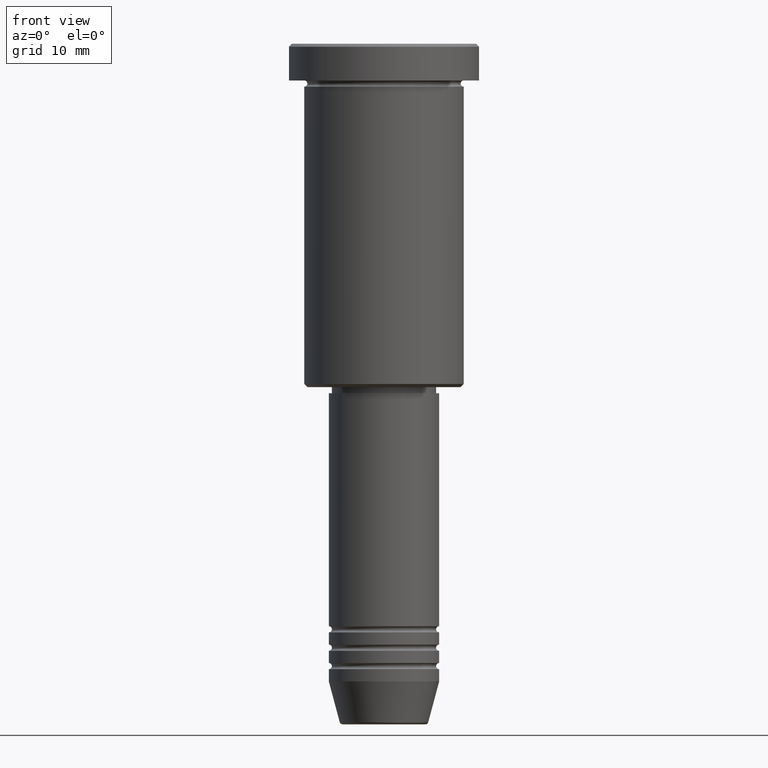
[diagram: clean part render]
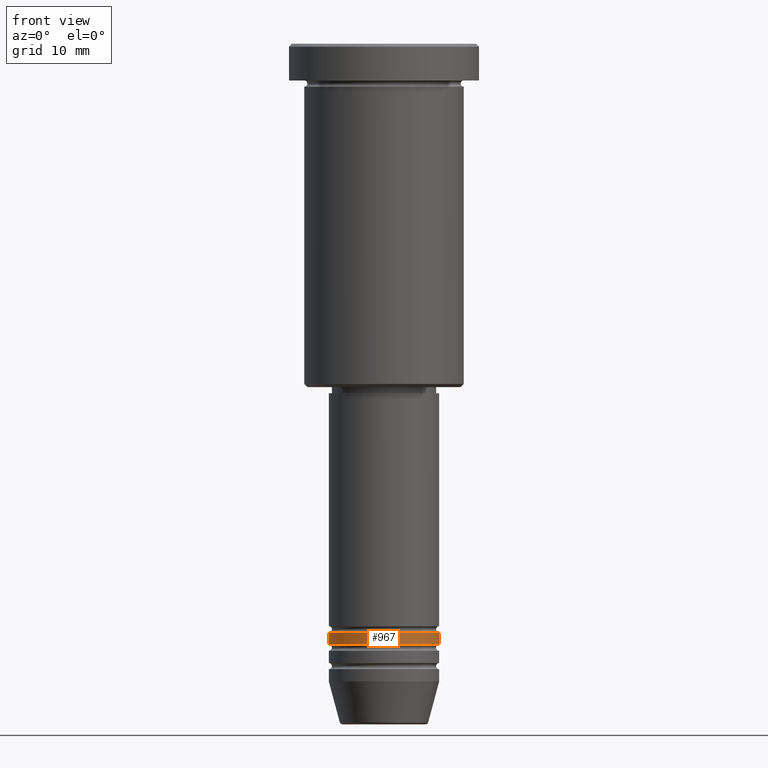
[diagram: same view with one face highlighted and labeled with its STEP entity id]
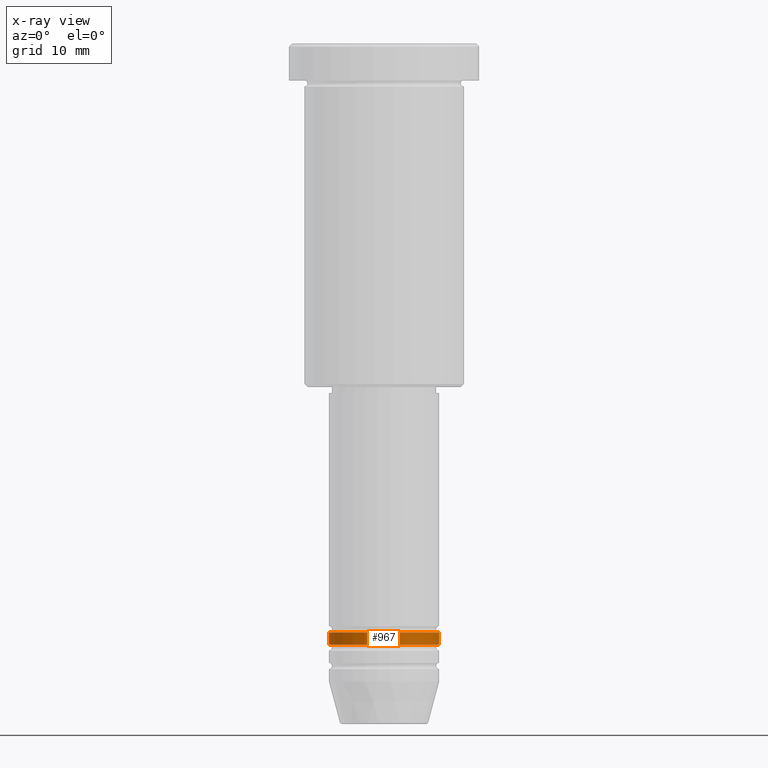
[diagram: x-ray of the same camera — body ghosted, the highlighted face saturated]
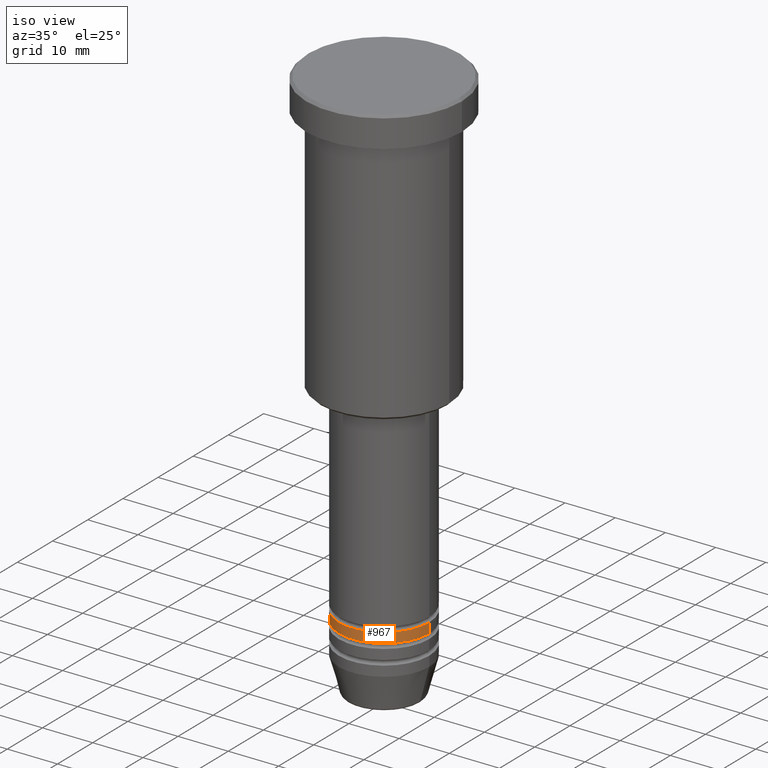
[diagram: same view with one face highlighted and labeled with its STEP entity id]
A machine part, front view. The second image highlights one B-rep face of the part: STEP entity #967.
The next image is the same camera in x-ray: the body ghosted, the highlighted face saturated — about 0% of this face is hidden behind the body in this view.
A second angle (iso view) of the same face is appended — the face is thin or edge-on in the first view.
In plain terms, the highlighted cylindrical surface (partial cylindrical patch) has radius 9 mm, axis along (-0, -0, 1).
Its self-contained STEP definition (entity closure, byte-faithful):
#16 = EDGE_LOOP ( 'NONE', ( #327, #965, #632, #74 ) ) ;
#62 = CARTESIAN_POINT ( 'NONE',  ( 9.000000000000000000, 0.000000000000000000, 0.000000000000000000 ) ) ;
#63 = VECTOR ( 'NONE', #236, 1000.000000000000000 ) ;
#69 = LINE ( 'NONE', #62, #63 ) ;
#74 = ORIENTED_EDGE ( 'NONE', *, *, #878, .F. ) ;
#82 = CIRCLE ( 'NONE', #942, 9.000000000000000000 ) ;
#119 = DIRECTION ( 'NONE',  ( 1.000000000000000000, 0.000000000000000000, 0.000000000000000000 ) ) ;
#134 = CARTESIAN_POINT ( 'NONE',  ( 0.000000000000000000, 0.000000000000000000, -95.99999999999998579 ) ) ;
#143 = AXIS2_PLACEMENT_3D ( 'NONE', #492, #345, #886 ) ;
#218 = DIRECTION ( 'NONE',  ( -0.000000000000000000, -0.000000000000000000, 1.000000000000000000 ) ) ;
#236 = DIRECTION ( 'NONE',  ( -0.000000000000000000, -0.000000000000000000, 1.000000000000000000 ) ) ;
#275 = VERTEX_POINT ( 'NONE', #294 ) ;
#294 = CARTESIAN_POINT ( 'NONE',  ( -9.000000000000000000, 1.102182119232617714E-15, -97.99999999999997158 ) ) ;
#327 = ORIENTED_EDGE ( 'NONE', *, *, #934, .F. ) ;
#345 = DIRECTION ( 'NONE',  ( -0.000000000000000000, -0.000000000000000000, 1.000000000000000000 ) ) ;
#451 = CARTESIAN_POINT ( 'NONE',  ( -9.000000000000000000, 1.102182119232617714E-15, -95.99999999999998579 ) ) ;
#470 = CARTESIAN_POINT ( 'NONE',  ( 0.000000000000000000, 0.000000000000000000, -97.99999999999997158 ) ) ;
#478 = DIRECTION ( 'NONE',  ( 1.000000000000000000, 0.000000000000000000, 0.000000000000000000 ) ) ;
#492 = CARTESIAN_POINT ( 'NONE',  ( 0.000000000000000000, 0.000000000000000000, 0.000000000000000000 ) ) ;
#580 = LINE ( 'NONE', #667, #999 ) ;
#627 = EDGE_CURVE ( 'NONE', #669, #698, #69, .T. ) ;
#631 = CARTESIAN_POINT ( 'NONE',  ( 9.000000000000000000, 0.000000000000000000, -95.99999999999998579 ) ) ;
#632 = ORIENTED_EDGE ( 'NONE', *, *, #627, .T. ) ;
#667 = CARTESIAN_POINT ( 'NONE',  ( -9.000000000000000000, 1.102182119232617714E-15, 0.000000000000000000 ) ) ;
#669 = VERTEX_POINT ( 'NONE', #873 ) ;
#698 = VERTEX_POINT ( 'NONE', #631 ) ;
#750 = FACE_OUTER_BOUND ( 'NONE', #16, .T. ) ;
#855 = DIRECTION ( 'NONE',  ( -0.000000000000000000, -0.000000000000000000, 1.000000000000000000 ) ) ;
#857 = EDGE_CURVE ( 'NONE', #275, #669, #1134, .T. ) ;
#873 = CARTESIAN_POINT ( 'NONE',  ( 9.000000000000000000, 0.000000000000000000, -97.99999999999997158 ) ) ;
#878 = EDGE_CURVE ( 'NONE', #1171, #698, #82, .T. ) ;
#886 = DIRECTION ( 'NONE',  ( 1.000000000000000000, 0.000000000000000000, 0.000000000000000000 ) ) ;
#934 = EDGE_CURVE ( 'NONE', #275, #1171, #580, .T. ) ;
#938 = CYLINDRICAL_SURFACE ( 'NONE', #143, 9.000000000000000000 ) ;
#942 = AXIS2_PLACEMENT_3D ( 'NONE', #134, #855, #478 ) ;
#965 = ORIENTED_EDGE ( 'NONE', *, *, #857, .T. ) ;
#967 = ADVANCED_FACE ( 'NONE', ( #750 ), #938, .T. ) ;
#999 = VECTOR ( 'NONE', #218, 1000.000000000000000 ) ;
#1110 = DIRECTION ( 'NONE',  ( -0.000000000000000000, -0.000000000000000000, 1.000000000000000000 ) ) ;
#1134 = CIRCLE ( 'NONE', #1173, 9.000000000000000000 ) ;
#1171 = VERTEX_POINT ( 'NONE', #451 ) ;
#1173 = AXIS2_PLACEMENT_3D ( 'NONE', #470, #1110, #119 ) ;